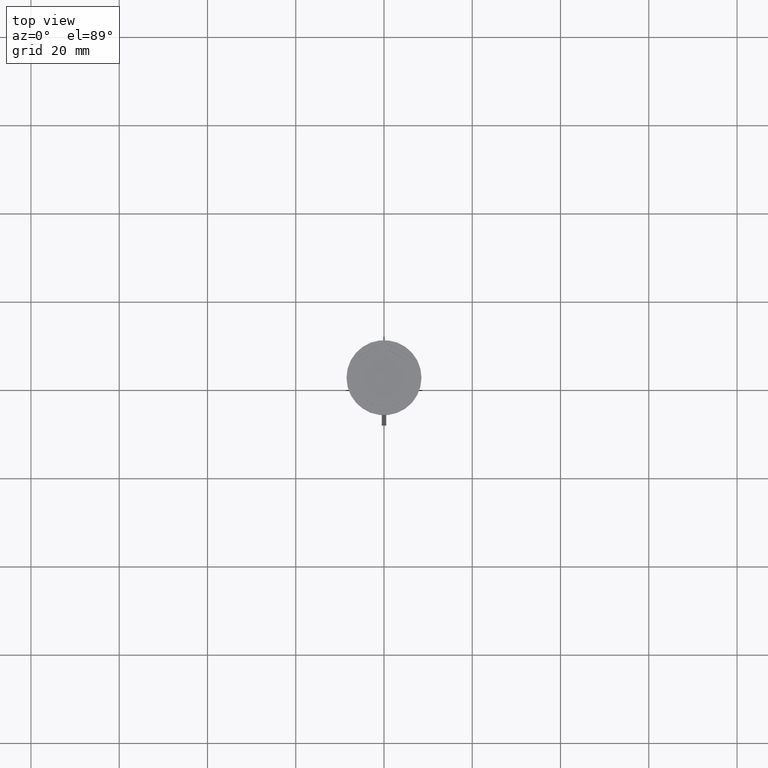
[diagram: clean part render]
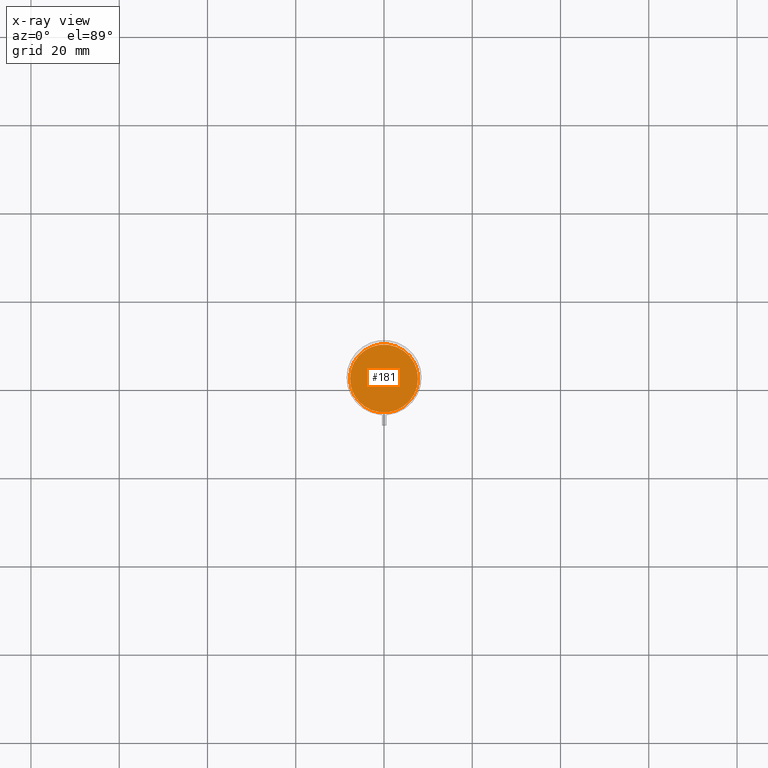
[diagram: x-ray — body ghosted, one internal face saturated and labeled with its STEP entity id]
A machine part, top view, then the same camera in x-ray: the body is ghosted and one INTERNAL B-rep face — a face not visible from any outside direction — is saturated and labeled: STEP entity #181.
In plain terms, the highlighted planar face has unit normal (0, 0, -1).
Its self-contained STEP definition (entity closure, byte-faithful):
#181 = ADVANCED_FACE ( 'NONE', ( #1226 ), #1036, .F. ) ;
#360 = CIRCLE ( 'NONE', #478, 7.700000000000001954 ) ;
#478 = AXIS2_PLACEMENT_3D ( 'NONE', #799, #790, #763 ) ;
#519 = CARTESIAN_POINT ( 'NONE',  ( 7.700000000000001954, 9.613477373306725302E-16, -12.00000000000000000 ) ) ;
#763 = DIRECTION ( 'NONE',  ( -1.000000000000000000, 0.000000000000000000, 0.000000000000000000 ) ) ;
#787 = DIRECTION ( 'NONE',  ( -1.000000000000000000, 0.000000000000000000, -0.000000000000000000 ) ) ;
#790 = DIRECTION ( 'NONE',  ( -0.000000000000000000, -0.000000000000000000, 1.000000000000000000 ) ) ;
#799 = CARTESIAN_POINT ( 'NONE',  ( 0.000000000000000000, 0.000000000000000000, -12.00000000000000000 ) ) ;
#913 = EDGE_CURVE ( 'NONE', #1394, #1054, #1451, .T. ) ;
#1036 = PLANE ( 'NONE',  #1400 ) ;
#1054 = VERTEX_POINT ( 'NONE', #519 ) ;
#1182 = CARTESIAN_POINT ( 'NONE',  ( 0.000000000000000000, 0.000000000000000000, -12.00000000000000000 ) ) ;
#1226 = FACE_OUTER_BOUND ( 'NONE', #1827, .T. ) ;
#1394 = VERTEX_POINT ( 'NONE', #1865 ) ;
#1400 = AXIS2_PLACEMENT_3D ( 'NONE', #2370, #2187, #787 ) ;
#1451 = CIRCLE ( 'NONE', #1781, 7.700000000000001954 ) ;
#1781 = AXIS2_PLACEMENT_3D ( 'NONE', #1182, #1903, #2438 ) ;
#1827 = EDGE_LOOP ( 'NONE', ( #2475, #2018 ) ) ;
#1865 = CARTESIAN_POINT ( 'NONE',  ( -7.700000000000001954, 0.000000000000000000, -12.00000000000000000 ) ) ;
#1903 = DIRECTION ( 'NONE',  ( -0.000000000000000000, -0.000000000000000000, 1.000000000000000000 ) ) ;
#1989 = EDGE_CURVE ( 'NONE', #1054, #1394, #360, .T. ) ;
#2018 = ORIENTED_EDGE ( 'NONE', *, *, #1989, .T. ) ;
#2187 = DIRECTION ( 'NONE',  ( 0.000000000000000000, 0.000000000000000000, -1.000000000000000000 ) ) ;
#2370 = CARTESIAN_POINT ( 'NONE',  ( 0.000000000000000000, 0.000000000000000000, -12.00000000000000000 ) ) ;
#2438 = DIRECTION ( 'NONE',  ( -1.000000000000000000, 0.000000000000000000, 0.000000000000000000 ) ) ;
#2475 = ORIENTED_EDGE ( 'NONE', *, *, #913, .T. ) ;